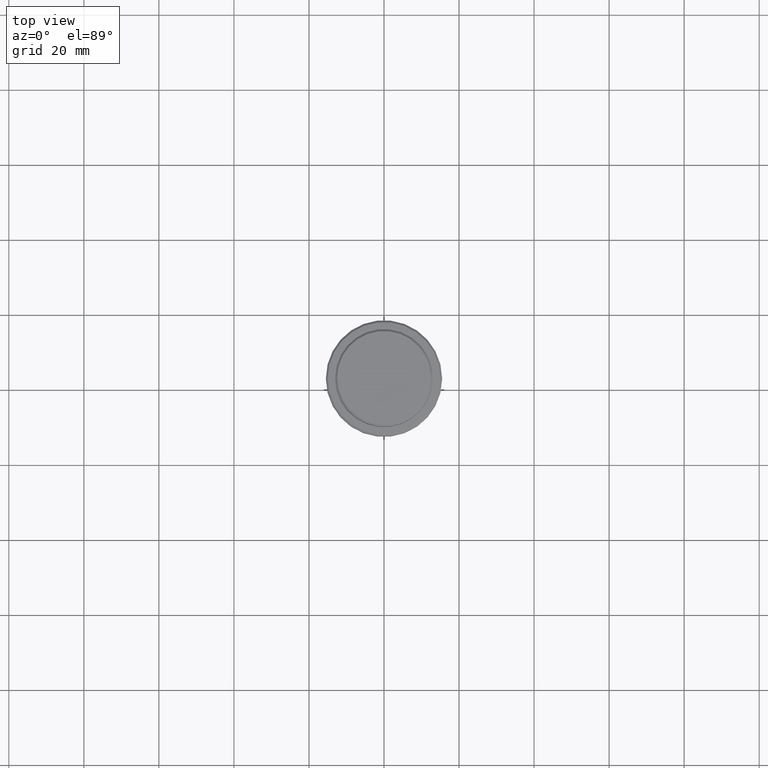
[diagram: clean part render]
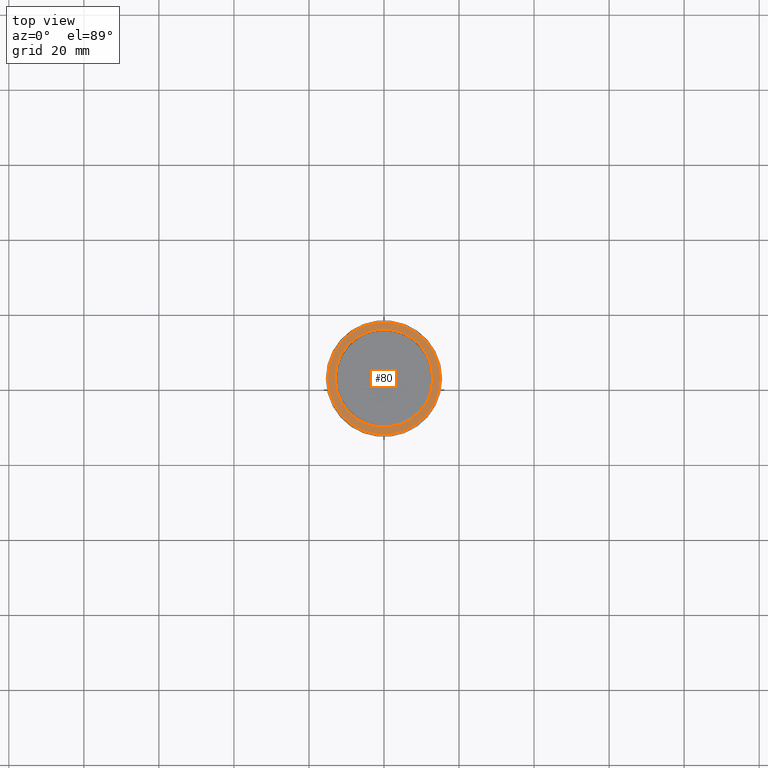
[diagram: same view with one face highlighted and labeled with its STEP entity id]
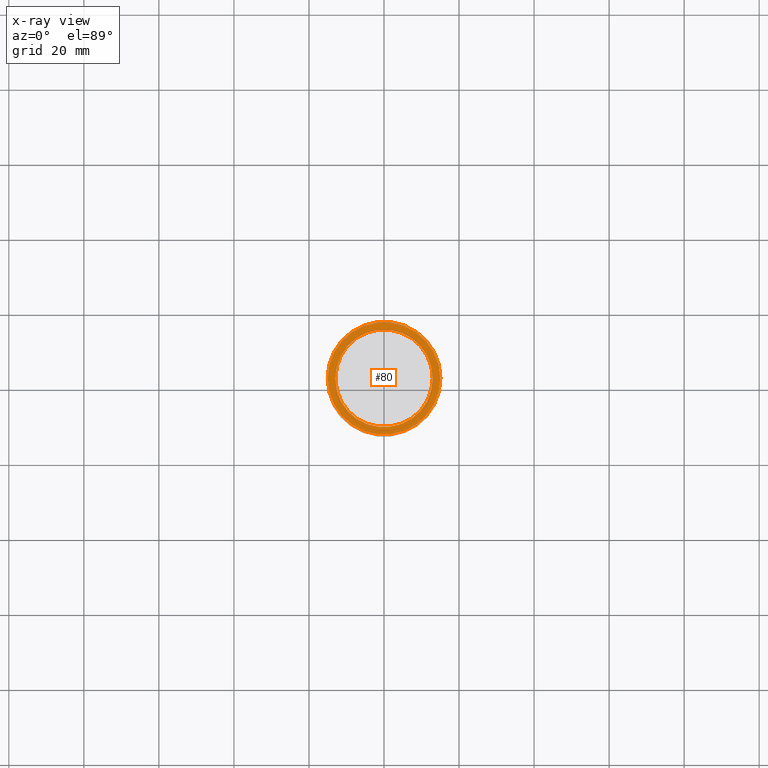
[diagram: x-ray of the same camera — body ghosted, the highlighted face saturated]
A machine part, top view. The second image highlights one B-rep face of the part: STEP entity #80.
The next image is the same camera in x-ray: the body ghosted, the highlighted face saturated — about 0% of this face is hidden behind the body in this view.
In plain terms, the highlighted planar face has unit normal (0, -0, 1).
Its self-contained STEP definition (entity closure, byte-faithful):
#23 = VERTEX_POINT ( 'NONE', #240 ) ;
#28 = DIRECTION ( 'NONE',  ( 1.000000000000000000, 0.000000000000000000, 0.000000000000000000 ) ) ;
#80 = ADVANCED_FACE ( 'NONE', ( #673, #1120 ), #132, .T. ) ;
#94 = ORIENTED_EDGE ( 'NONE', *, *, #126, .T. ) ;
#116 = DIRECTION ( 'NONE',  ( 0.000000000000000000, 0.000000000000000000, -1.000000000000000000 ) ) ;
#123 = VERTEX_POINT ( 'NONE', #1046 ) ;
#126 = EDGE_CURVE ( 'NONE', #23, #123, #1027, .T. ) ;
#132 = PLANE ( 'NONE',  #1369 ) ;
#151 = AXIS2_PLACEMENT_3D ( 'NONE', #163, #729, #1166 ) ;
#152 = EDGE_CURVE ( 'NONE', #1165, #1224, #340, .T. ) ;
#163 = CARTESIAN_POINT ( 'NONE',  ( 0.000000000000000000, 0.000000000000000000, -9.000000000000001776 ) ) ;
#191 = CARTESIAN_POINT ( 'NONE',  ( 12.99999999999999467, 0.000000000000000000, -9.000000000000001776 ) ) ;
#240 = CARTESIAN_POINT ( 'NONE',  ( 14.99999999999998579, 1.867586368699712587E-15, -9.000000000000001776 ) ) ;
#248 = ORIENTED_EDGE ( 'NONE', *, *, #1384, .T. ) ;
#255 = CARTESIAN_POINT ( 'NONE',  ( 0.000000000000000000, 0.000000000000000000, -9.000000000000001776 ) ) ;
#276 = DIRECTION ( 'NONE',  ( 1.000000000000000000, 0.000000000000000000, 0.000000000000000000 ) ) ;
#281 = DIRECTION ( 'NONE',  ( 1.000000000000000000, 0.000000000000000000, 0.000000000000000000 ) ) ;
#314 = ORIENTED_EDGE ( 'NONE', *, *, #152, .T. ) ;
#340 = CIRCLE ( 'NONE', #568, 12.99999999999999467 ) ;
#406 = EDGE_LOOP ( 'NONE', ( #1351, #94 ) ) ;
#496 = CARTESIAN_POINT ( 'NONE',  ( 0.000000000000000000, 0.000000000000000000, -9.000000000000001776 ) ) ;
#526 = CARTESIAN_POINT ( 'NONE',  ( 0.000000000000000000, 0.000000000000000000, -9.000000000000001776 ) ) ;
#555 = EDGE_CURVE ( 'NONE', #123, #23, #822, .T. ) ;
#558 = DIRECTION ( 'NONE',  ( 1.000000000000000000, 0.000000000000000000, 0.000000000000000000 ) ) ;
#568 = AXIS2_PLACEMENT_3D ( 'NONE', #255, #927, #281 ) ;
#580 = DIRECTION ( 'NONE',  ( 0.000000000000000000, -0.000000000000000000, 1.000000000000000000 ) ) ;
#673 = FACE_OUTER_BOUND ( 'NONE', #406, .T. ) ;
#727 = CIRCLE ( 'NONE', #1225, 12.99999999999999467 ) ;
#729 = DIRECTION ( 'NONE',  ( -0.000000000000000000, -0.000000000000000000, 1.000000000000000000 ) ) ;
#822 = CIRCLE ( 'NONE', #151, 14.99999999999998579 ) ;
#828 = EDGE_LOOP ( 'NONE', ( #314, #248 ) ) ;
#927 = DIRECTION ( 'NONE',  ( 0.000000000000000000, 0.000000000000000000, -1.000000000000000000 ) ) ;
#1016 = CARTESIAN_POINT ( 'NONE',  ( 0.000000000000000000, 12.49999999999999289, -9.000000000000001776 ) ) ;
#1027 = CIRCLE ( 'NONE', #1347, 14.99999999999998579 ) ;
#1046 = CARTESIAN_POINT ( 'NONE',  ( -14.99999999999998579, 0.000000000000000000, -9.000000000000001776 ) ) ;
#1120 = FACE_BOUND ( 'NONE', #828, .T. ) ;
#1165 = VERTEX_POINT ( 'NONE', #191 ) ;
#1166 = DIRECTION ( 'NONE',  ( 1.000000000000000000, 0.000000000000000000, 0.000000000000000000 ) ) ;
#1224 = VERTEX_POINT ( 'NONE', #1313 ) ;
#1225 = AXIS2_PLACEMENT_3D ( 'NONE', #526, #116, #558 ) ;
#1270 = DIRECTION ( 'NONE',  ( -0.000000000000000000, -0.000000000000000000, 1.000000000000000000 ) ) ;
#1313 = CARTESIAN_POINT ( 'NONE',  ( -12.99999999999999467, 1.592040838891558504E-15, -9.000000000000001776 ) ) ;
#1347 = AXIS2_PLACEMENT_3D ( 'NONE', #496, #1270, #276 ) ;
#1351 = ORIENTED_EDGE ( 'NONE', *, *, #555, .T. ) ;
#1369 = AXIS2_PLACEMENT_3D ( 'NONE', #1016, #580, #28 ) ;
#1384 = EDGE_CURVE ( 'NONE', #1224, #1165, #727, .T. ) ;